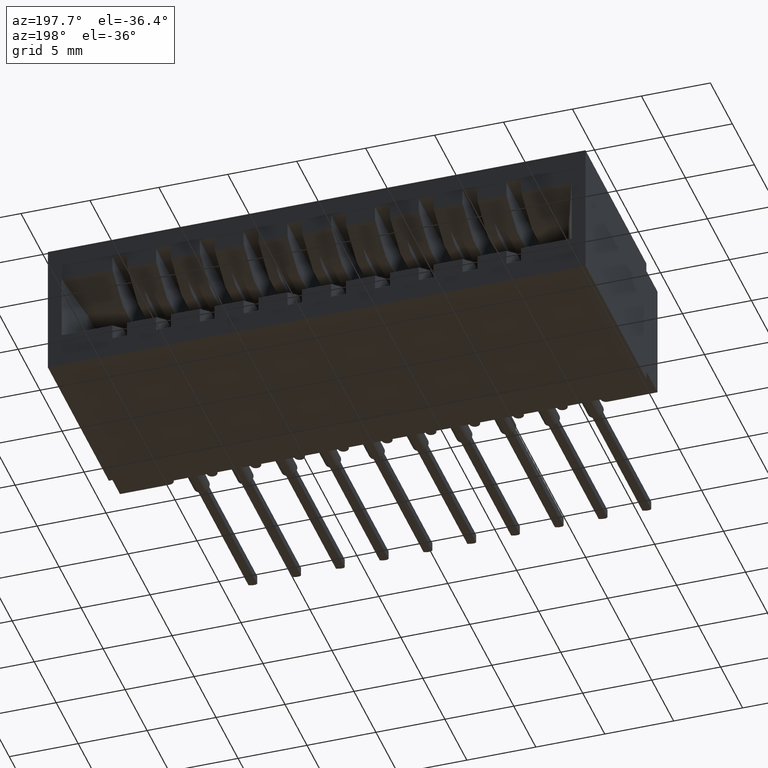
[diagram: clean part render]
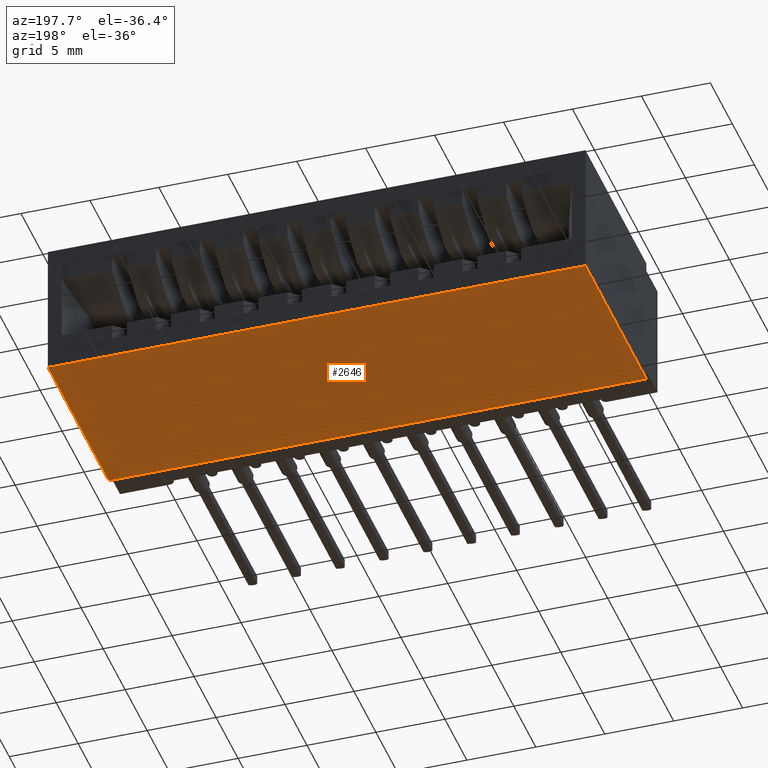
[diagram: same view with one face highlighted and labeled with its STEP entity id]
A machine part, auxiliary view. The second image highlights one B-rep face of the part: STEP entity #2646.
In plain terms, the highlighted planar face has unit normal (0, 0, 1).
Its self-contained STEP definition (entity closure, byte-faithful):
#704 = VERTEX_POINT ( 'NONE', #10528 ) ;
#2448 = EDGE_CURVE ( 'NONE', #4370, #16988, #7414, .T. ) ;
#2478 = ORIENTED_EDGE ( 'NONE', *, *, #16865, .F. ) ;
#2553 = CARTESIAN_POINT ( 'NONE',  ( 1.534999999999999920, 0.6449999999999999067, -0.3900000000000000133 ) ) ;
#2646 = ADVANCED_FACE ( 'NONE', ( #5406 ), #11387, .F. ) ;
#2758 = EDGE_LOOP ( 'NONE', ( #10072, #19131, #2478, #7756 ) ) ;
#3827 = DIRECTION ( 'NONE',  ( 1.000000000000000000, 0.0000000000000000000, -0.0000000000000000000 ) ) ;
#4054 = EDGE_CURVE ( 'NONE', #6544, #4370, #16178, .T. ) ;
#4209 = CARTESIAN_POINT ( 'NONE',  ( 0.0000000000000000000, 0.6449999999999999067, -0.3900000000000000133 ) ) ;
#4370 = VERTEX_POINT ( 'NONE', #18106 ) ;
#5406 = FACE_OUTER_BOUND ( 'NONE', #2758, .T. ) ;
#5620 = DIRECTION ( 'NONE',  ( -0.0000000000000000000, -1.000000000000000000, -0.0000000000000000000 ) ) ;
#6355 = AXIS2_PLACEMENT_3D ( 'NONE', #9896, #19115, #3827 ) ;
#6544 = VERTEX_POINT ( 'NONE', #18505 ) ;
#7414 = LINE ( 'NONE', #11532, #12966 ) ;
#7600 = VECTOR ( 'NONE', #18736, 39.37007874015748143 ) ;
#7756 = ORIENTED_EDGE ( 'NONE', *, *, #8082, .F. ) ;
#8082 = EDGE_CURVE ( 'NONE', #6544, #704, #13158, .T. ) ;
#9070 = DIRECTION ( 'NONE',  ( -1.000000000000000000, -0.0000000000000000000, -0.0000000000000000000 ) ) ;
#9896 = CARTESIAN_POINT ( 'NONE',  ( 0.0000000000000000000, 0.6449999999999999067, -0.3900000000000000133 ) ) ;
#10072 = ORIENTED_EDGE ( 'NONE', *, *, #4054, .T. ) ;
#10528 = CARTESIAN_POINT ( 'NONE',  ( 0.0000000000000000000, 0.6449999999999999067, -0.3900000000000000133 ) ) ;
#11387 = PLANE ( 'NONE',  #6355 ) ;
#11532 = CARTESIAN_POINT ( 'NONE',  ( 1.534999999999999920, 0.1000000000000000056, -0.3900000000000000133 ) ) ;
#12966 = VECTOR ( 'NONE', #19166, 39.37007874015748143 ) ;
#13158 = LINE ( 'NONE', #4209, #18637 ) ;
#14962 = CARTESIAN_POINT ( 'NONE',  ( 0.0000000000000000000, 0.1000000000000000056, -0.3900000000000000133 ) ) ;
#16178 = LINE ( 'NONE', #2553, #16526 ) ;
#16526 = VECTOR ( 'NONE', #5620, 39.37007874015748143 ) ;
#16865 = EDGE_CURVE ( 'NONE', #704, #16988, #17440, .T. ) ;
#16988 = VERTEX_POINT ( 'NONE', #14962 ) ;
#17440 = LINE ( 'NONE', #18831, #7600 ) ;
#18106 = CARTESIAN_POINT ( 'NONE',  ( 1.534999999999999920, 0.1000000000000000056, -0.3900000000000000133 ) ) ;
#18505 = CARTESIAN_POINT ( 'NONE',  ( 1.534999999999999920, 0.6449999999999999067, -0.3900000000000000133 ) ) ;
#18637 = VECTOR ( 'NONE', #9070, 39.37007874015748143 ) ;
#18736 = DIRECTION ( 'NONE',  ( -0.0000000000000000000, -1.000000000000000000, -0.0000000000000000000 ) ) ;
#18831 = CARTESIAN_POINT ( 'NONE',  ( 0.0000000000000000000, 0.6449999999999999067, -0.3900000000000000133 ) ) ;
#19115 = DIRECTION ( 'NONE',  ( 0.0000000000000000000, 0.0000000000000000000, 1.000000000000000000 ) ) ;
#19131 = ORIENTED_EDGE ( 'NONE', *, *, #2448, .T. ) ;
#19166 = DIRECTION ( 'NONE',  ( -1.000000000000000000, -0.0000000000000000000, -0.0000000000000000000 ) ) ;